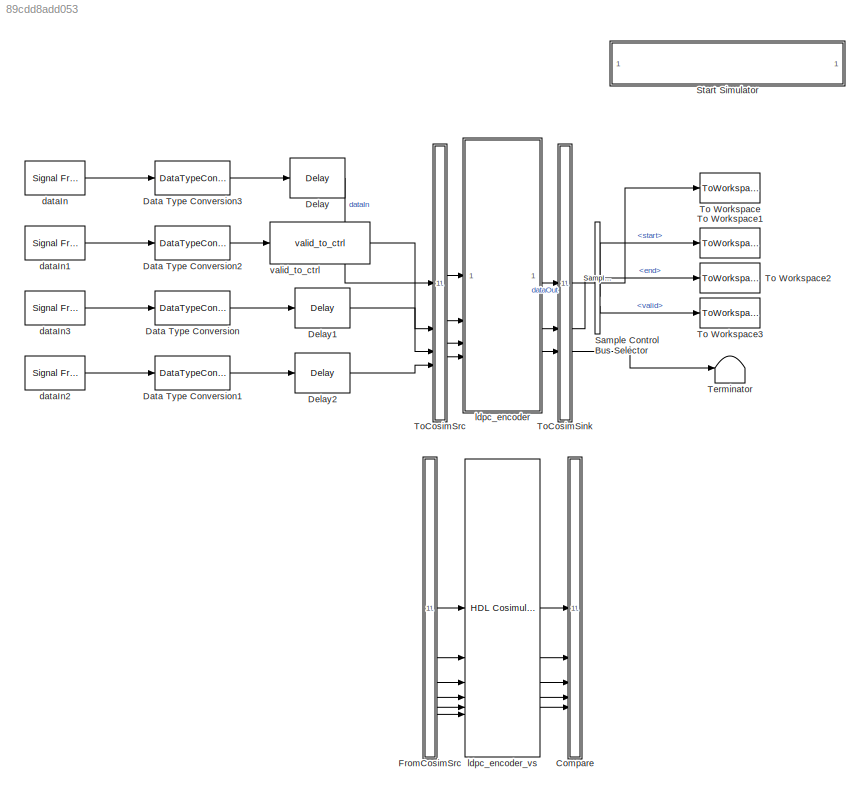
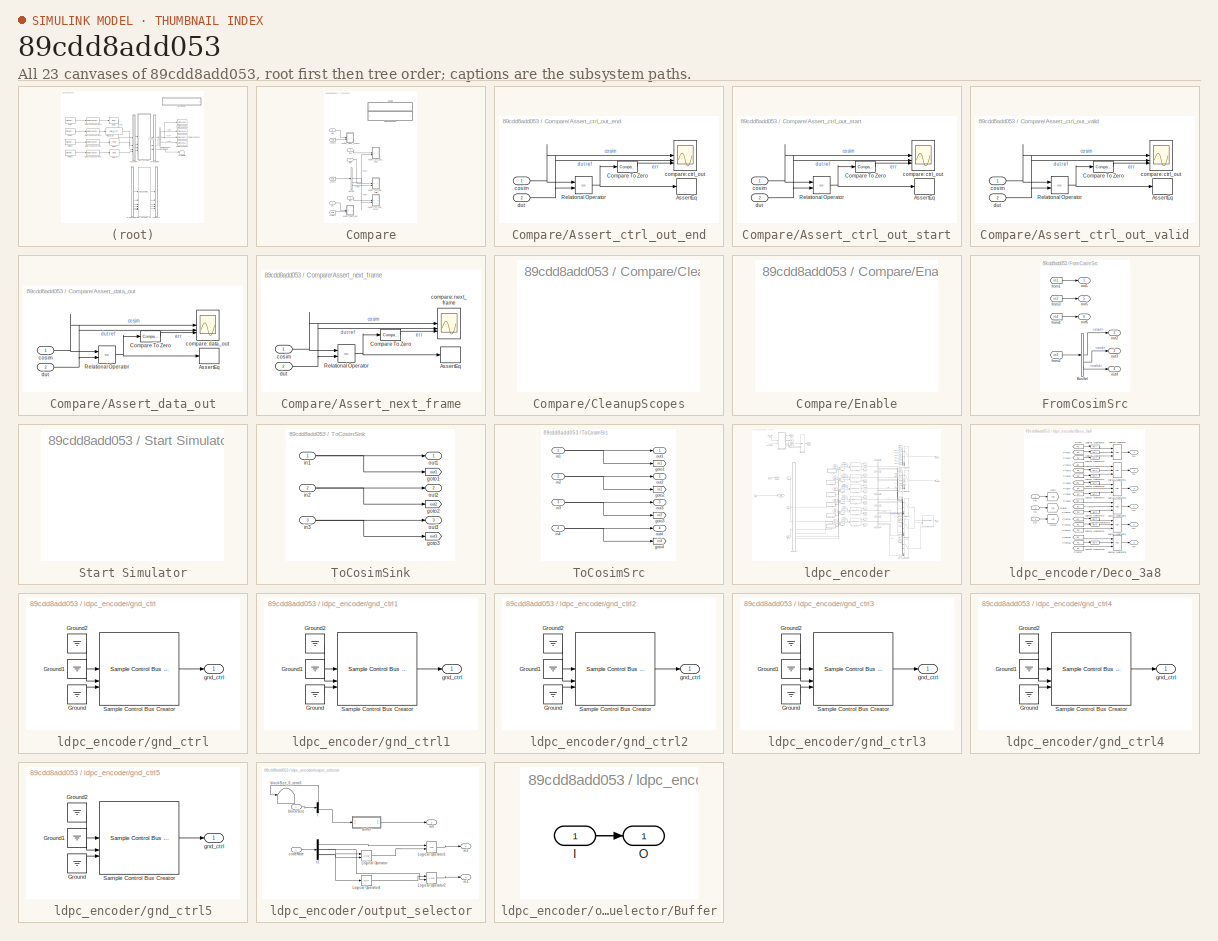
[diagram: thumbnail index - all 23 canvases of the model, root first then tree order]
MODEL slx_89cdd8add053
KIND model
CONFIG AbsTol = auto
CONFIG EnableMultiTasking = off
CONFIG FixedStep = auto
CONFIG MaxStep = auto
CONFIG MinStep = auto
CONFIG RelTol = 1e-3
CONFIG SampleTimeConstraint = Unconstrained
CONFIG SolverName = VariableStepAuto
CONFIG StartTime = 0.0
CONFIG StopTime = 10.0
BLOCK [SubSystem] Compare
BLOCK [SubSystem] Compare/Assert_ctrl_out_end
  LibrarySourceBlock = hdlmdlgenlib/AssertEq
BLOCK [Assertion] Compare/Assert_ctrl_out_end/AssertEq
BLOCK [Reference] Compare/Assert_ctrl_out_end/Compare To Zero  REF=simulink/Logic and Bit
Operations/Compare
To Zero
  SourceBlock = simulink/Logic and Bit\nOperations/Compare\nTo Zero
  SourceType = Compare To Zero
BLOCK [RelationalOperator] Compare/Assert_ctrl_out_end/Relational Operator
  InputSameDT = off
  Operator = ==
  OutDataTypeStr = boolean
BLOCK [Scope] Compare/Assert_ctrl_out_end/compare: ctrl_out
  Floating = off
  NumInputPorts = 3
  ScopeSpecificationString = Simulink.scopes.TimeScopeBlockCfg('CurrentConfiguration', extmgr.ConfigurationSet(extmgr.Configuration('Core','General UI',true,'MessageLogAutoOpenMode','for warn/fail messages','ShowCloseAll',true,'ShowBringAllForward',true),extmgr.Configuration('Core','Source UI',true,'PlaybackToolbar',true),extmgr.Configuration('Sources','WiredSimulink',true,'PointsPerSignal',50000,'DataLoggingDecimation','1','...<+3577ch>
BLOCK [Inport] Compare/Assert_ctrl_out_end/cosim
BLOCK [Inport] Compare/Assert_ctrl_out_end/dut
  Port = 2
BLOCK [SubSystem] Compare/Assert_ctrl_out_start
  LibrarySourceBlock = hdlmdlgenlib/AssertEq
BLOCK [Assertion] Compare/Assert_ctrl_out_start/AssertEq
BLOCK [Reference] Compare/Assert_ctrl_out_start/Compare To Zero  REF=simulink/Logic and Bit
Operations/Compare
To Zero
  SourceBlock = simulink/Logic and Bit\nOperations/Compare\nTo Zero
  SourceType = Compare To Zero
BLOCK [RelationalOperator] Compare/Assert_ctrl_out_start/Relational Operator
  InputSameDT = off
  Operator = ==
  OutDataTypeStr = boolean
BLOCK [Scope] Compare/Assert_ctrl_out_start/compare: ctrl_out
  Floating = off
  NumInputPorts = 3
  ScopeSpecificationString = Simulink.scopes.TimeScopeBlockCfg('CurrentConfiguration', extmgr.ConfigurationSet(extmgr.Configuration('Core','General UI',true,'MessageLogAutoOpenMode','for warn/fail messages','ShowCloseAll',true,'ShowBringAllForward',true),extmgr.Configuration('Core','Source UI',true,'PlaybackToolbar',true),extmgr.Configuration('Sources','WiredSimulink',true,'PointsPerSignal',50000,'DataLoggingDecimation','1','...<+3579ch>
BLOCK [Inport] Compare/Assert_ctrl_out_start/cosim
BLOCK [Inport] Compare/Assert_ctrl_out_start/dut
  Port = 2
BLOCK [SubSystem] Compare/Assert_ctrl_out_valid
  LibrarySourceBlock = hdlmdlgenlib/AssertEq
BLOCK [Assertion] Compare/Assert_ctrl_out_valid/AssertEq
BLOCK [Reference] Compare/Assert_ctrl_out_valid/Compare To Zero  REF=simulink/Logic and Bit
Operations/Compare
To Zero
  SourceBlock = simulink/Logic and Bit\nOperations/Compare\nTo Zero
  SourceType = Compare To Zero
BLOCK [RelationalOperator] Compare/Assert_ctrl_out_valid/Relational Operator
  InputSameDT = off
  Operator = ==
  OutDataTypeStr = boolean
BLOCK [Scope] Compare/Assert_ctrl_out_valid/compare: ctrl_out
  Floating = off
  NumInputPorts = 3
  ScopeSpecificationString = Simulink.scopes.TimeScopeBlockCfg('CurrentConfiguration', extmgr.ConfigurationSet(extmgr.Configuration('Core','General UI',true,'MessageLogAutoOpenMode','for warn/fail messages','ShowCloseAll',true,'ShowBringAllForward',true),extmgr.Configuration('Core','Source UI',true,'PlaybackToolbar',true),extmgr.Configuration('Sources','WiredSimulink',true,'PointsPerSignal',50000,'DataLoggingDecimation','1','...<+3578ch>  <repeated x3 — deduplicated; at blocks: compare: ctrl_out, compare: data_out, compare: next_frame>
BLOCK [Inport] Compare/Assert_ctrl_out_valid/cosim
BLOCK [Inport] Compare/Assert_ctrl_out_valid/dut
  Port = 2
BLOCK [SubSystem] Compare/Assert_data_out
  LibrarySourceBlock = hdlmdlgenlib/AssertEq
BLOCK [Assertion] Compare/Assert_data_out/AssertEq
BLOCK [Reference] Compare/Assert_data_out/Compare To Zero  REF=simulink/Logic and Bit
Operations/Compare
To Zero
  SourceBlock = simulink/Logic and Bit\nOperations/Compare\nTo Zero
  SourceType = Compare To Zero
BLOCK [RelationalOperator] Compare/Assert_data_out/Relational Operator
  InputSameDT = off
  Operator = ==
  OutDataTypeStr = boolean
BLOCK [Scope] Compare/Assert_data_out/compare: data_out
  Floating = off
  NumInputPorts = 3
BLOCK [Inport] Compare/Assert_data_out/cosim
BLOCK [Inport] Compare/Assert_data_out/dut
  Port = 2
BLOCK [SubSystem] Compare/Assert_next_frame
  LibrarySourceBlock = hdlmdlgenlib/AssertEq
BLOCK [Assertion] Compare/Assert_next_frame/AssertEq
BLOCK [Reference] Compare/Assert_next_frame/Compare To Zero  REF=simulink/Logic and Bit
Operations/Compare
To Zero
  SourceBlock = simulink/Logic and Bit\nOperations/Compare\nTo Zero
  SourceType = Compare To Zero
BLOCK [RelationalOperator] Compare/Assert_next_frame/Relational Operator
  InputSameDT = off
  Operator = ==
  OutDataTypeStr = boolean
BLOCK [Scope] Compare/Assert_next_frame/compare: next_frame
  Floating = off
  NumInputPorts = 3
BLOCK [Inport] Compare/Assert_next_frame/cosim
BLOCK [Inport] Compare/Assert_next_frame/dut
  Port = 2
BLOCK [BusSelector] Compare/BusSel
  OutputSignals = start,end,valid
BLOCK [SubSystem] Compare/CleanupScopes
  OpenFcn = blkName = gcb; %self block\nidx = regexp(blkName, '/CleanupScopes$', 'once');\nblkParent = blkName(1:idx-1);\nblks=find_system(blkParent, 'LookUnderMasks', 'all','blocktype', 'Scope');\nfor itr = 1:length(blks)\n	 hScopeCfg = get_param(blks{itr},'ScopeConfiguration');\n	 hScopeCfg.Visible = ~ hScopeCfg.Visible;\nend\ndrawnow;
BLOCK [SubSystem] Compare/Enable
  OpenFcn = blkName = gcb;\nidx = regexp(blkName, '/Enable$', 'once');\nblkParent = blkName(1:idx-1);\nblks=find_system(blkParent, 'LookUnderMasks', 'all','blocktype', 'Assertion');\ne = get_param(blks{1}, 'Enabled');\nif strcmp(e, 'on'), f= 'off';, else, f = 'on';, end\nfor ii=1:length(blks), set_param(blks{ii}, 'Enabled', f);, end\nset_param(gcb, 'MaskDisplay',['fprintf(message(''hdlcoder:cosim:vnl_dblclick_assert...<+47ch>
BLOCK [From] Compare/from1
  GotoTag = out1
  TagVisibility = global
BLOCK [From] Compare/from2
  GotoTag = out2
  TagVisibility = global
BLOCK [From] Compare/from3
  GotoTag = out3
  TagVisibility = global
BLOCK [Inport] Compare/in1
BLOCK [Inport] Compare/in2
  Port = 2
BLOCK [Inport] Compare/in3
  Port = 3
BLOCK [Inport] Compare/in4
  Port = 4
BLOCK [Inport] Compare/in5
  Port = 5
BLOCK [DataTypeConversion] Data Type Conversion
  OutDataTypeStr = boolean
  RndMeth = Floor
  SaturateOnIntegerOverflow = off
BLOCK [DataTypeConversion] Data Type Conversion1
  OutDataTypeStr = boolean
  RndMeth = Floor
  SaturateOnIntegerOverflow = off
BLOCK [DataTypeConversion] Data Type Conversion2
  OutDataTypeStr = boolean
  RndMeth = Floor
  SaturateOnIntegerOverflow = off
BLOCK [DataTypeConversion] Data Type Conversion3
  OutDataTypeStr = boolean
  RndMeth = Floor
  SaturateOnIntegerOverflow = off
BLOCK [Delay] Delay
  DelayLength = 1
  InitialCondition = 0
  InputPortMap = u0
  UseCircularBuffer = on
  UserDataPersistent = on
BLOCK [Delay] Delay1
  DelayLength = 1
  InitialCondition = 0
  InputPortMap = u0
  UseCircularBuffer = on
  UserDataPersistent = on
BLOCK [Delay] Delay2
  DelayLength = 1
  InitialCondition = 0
  InputPortMap = u0
  UseCircularBuffer = on
  UserDataPersistent = on
BLOCK [SubSystem] FromCosimSrc
BLOCK [BusSelector] FromCosimSrc/BusSel
  OutputSignals = start,end,valid
BLOCK [From] FromCosimSrc/from1
  GotoTag = in1
  TagVisibility = global
BLOCK [From] FromCosimSrc/from2
  GotoTag = in2
  TagVisibility = global
BLOCK [From] FromCosimSrc/from3
  GotoTag = in3
  TagVisibility = global
BLOCK [From] FromCosimSrc/from4
  GotoTag = in4
  TagVisibility = global
BLOCK [Outport] FromCosimSrc/out1
BLOCK [Outport] FromCosimSrc/out2
  Port = 2
BLOCK [Outport] FromCosimSrc/out3
  Port = 3
BLOCK [Outport] FromCosimSrc/out4
  Port = 4
BLOCK [Outport] FromCosimSrc/out5
  Port = 5
BLOCK [Outport] FromCosimSrc/out6
  Port = 6
BLOCK [Reference] Sample Control Bus Selector  REF=whdlutilities/Sample Control
Bus Selector
  SourceBlock = whdlutilities/Sample Control\nBus Selector
BLOCK [SubSystem] Start Simulator
  OpenFcn = cosimDirName = pwd;\ncd 'hdl_prj/hdlsrc/HDLLDPCEncoder';\n[s,r] = system('vivado -mode batch -source gm_HDLLDPCEncoder_vs.tcl','-echo');\ncd (cosimDirName);\nclear cosimDirName;\nif s\n   error('Failed to create Vivado HDL design DLL using script gm_HDLLDPCEncoder_vs.tcl.');\nend
BLOCK [Terminator] Terminator
BLOCK [ToWorkspace] To Workspace
  MaxDataPoints = inf
  SampleTime = 1/fs
  Save2DSignal = 2-D array (concatenate along first dimension)
  VariableName = dataOut
BLOCK [ToWorkspace] To Workspace1
  MaxDataPoints = inf
  SampleTime = 1/fs
  Save2DSignal = 2-D array (concatenate along first dimension)
  VariableName = startOut
BLOCK [ToWorkspace] To Workspace2
  MaxDataPoints = inf
  SampleTime = 1/fs
  Save2DSignal = 2-D array (concatenate along first dimension)
  VariableName = endOut
BLOCK [ToWorkspace] To Workspace3
  MaxDataPoints = inf
  SampleTime = 1/fs
  Save2DSignal = 2-D array (concatenate along first dimension)
  VariableName = validOut
BLOCK [SubSystem] ToCosimSink
BLOCK [Goto] ToCosimSink/goto1
  GotoTag = out1
  TagVisibility = global
BLOCK [Goto] ToCosimSink/goto2
  GotoTag = out2
  TagVisibility = global
BLOCK [Goto] ToCosimSink/goto3
  GotoTag = out3
  TagVisibility = global
BLOCK [Inport] ToCosimSink/in1
BLOCK [Inport] ToCosimSink/in2
  Port = 2
BLOCK [Inport] ToCosimSink/in3
  Port = 3
BLOCK [Outport] ToCosimSink/out1
BLOCK [Outport] ToCosimSink/out2
  Port = 2
BLOCK [Outport] ToCosimSink/out3
  Port = 3
BLOCK [SubSystem] ToCosimSrc
BLOCK [Goto] ToCosimSrc/goto1
  GotoTag = in1
  TagVisibility = global
BLOCK [Goto] ToCosimSrc/goto2
  GotoTag = in2
  TagVisibility = global
BLOCK [Goto] ToCosimSrc/goto3
  GotoTag = in3
  TagVisibility = global
BLOCK [Goto] ToCosimSrc/goto4
  GotoTag = in4
  TagVisibility = global
BLOCK [Inport] ToCosimSrc/in1
BLOCK [Inport] ToCosimSrc/in2
  Port = 2
BLOCK [Inport] ToCosimSrc/in3
  Port = 3
BLOCK [Inport] ToCosimSrc/in4
  Port = 4
BLOCK [Outport] ToCosimSrc/out1
BLOCK [Outport] ToCosimSrc/out2
  Port = 2
BLOCK [Outport] ToCosimSrc/out3
  Port = 3
BLOCK [Outport] ToCosimSrc/out4
  Port = 4
BLOCK [Reference] dataIn  REF=dspsrcs4/Signal From
Workspace
  SourceBlock = dspsrcs4/Signal From\nWorkspace
  SourceType = Signal From Workspace
BLOCK [Reference] dataIn1  REF=dspsrcs4/Signal From
Workspace
  SourceBlock = dspsrcs4/Signal From\nWorkspace
  SourceType = Signal From Workspace
BLOCK [Reference] dataIn2  REF=dspsrcs4/Signal From
Workspace
  SourceBlock = dspsrcs4/Signal From\nWorkspace
  SourceType = Signal From Workspace
BLOCK [Reference] dataIn3  REF=dspsrcs4/Signal From
Workspace
  SourceBlock = dspsrcs4/Signal From\nWorkspace
  SourceType = Signal From Workspace
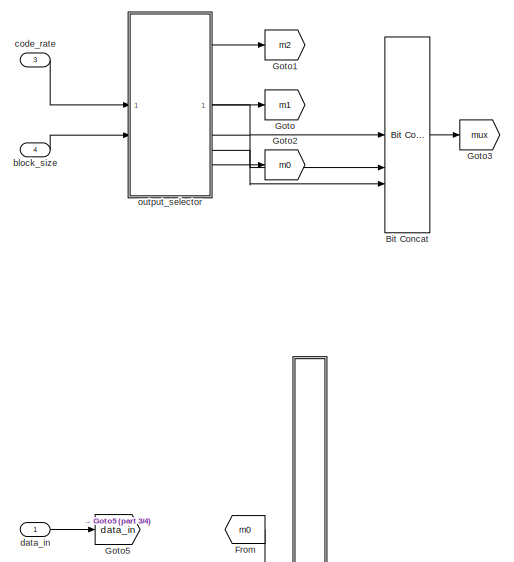
[diagram: ldpc_encoder - part 1/4, top left region]
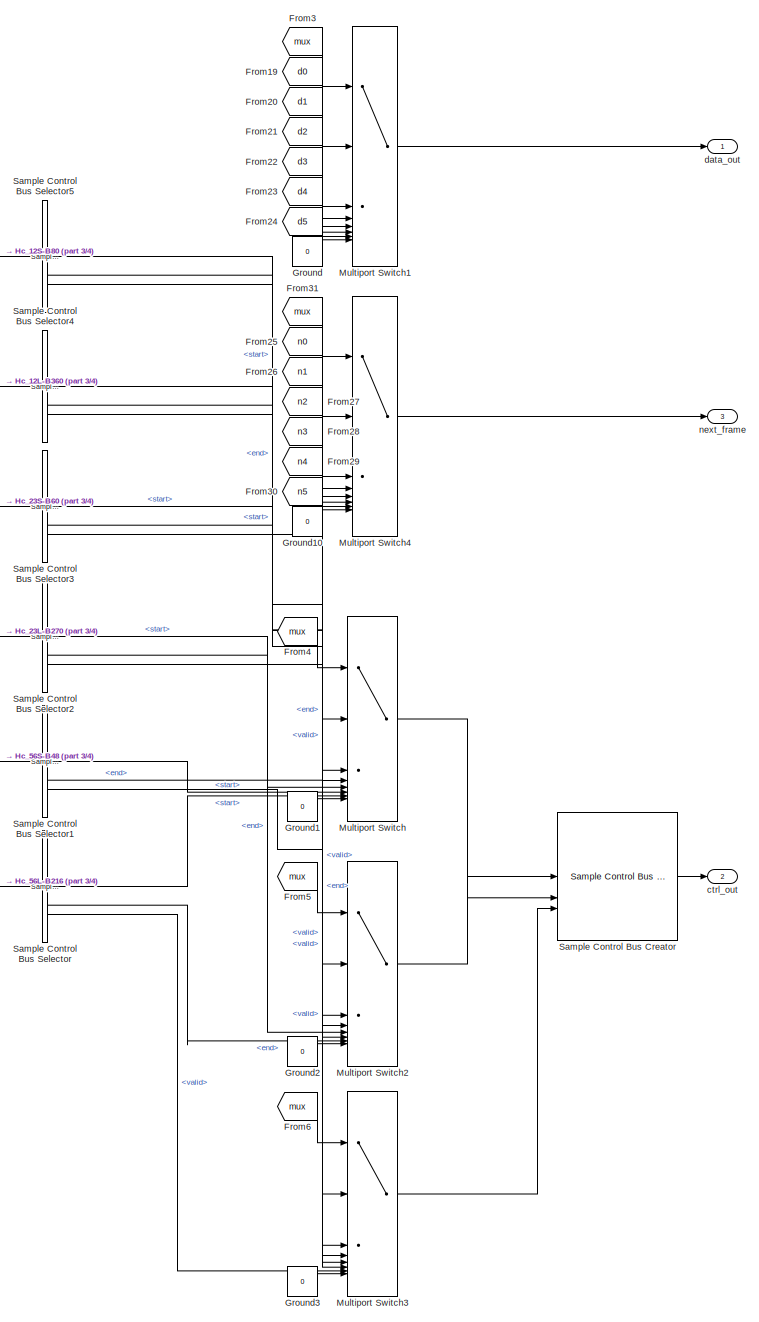
[diagram: ldpc_encoder - part 2/4, right side, full height]
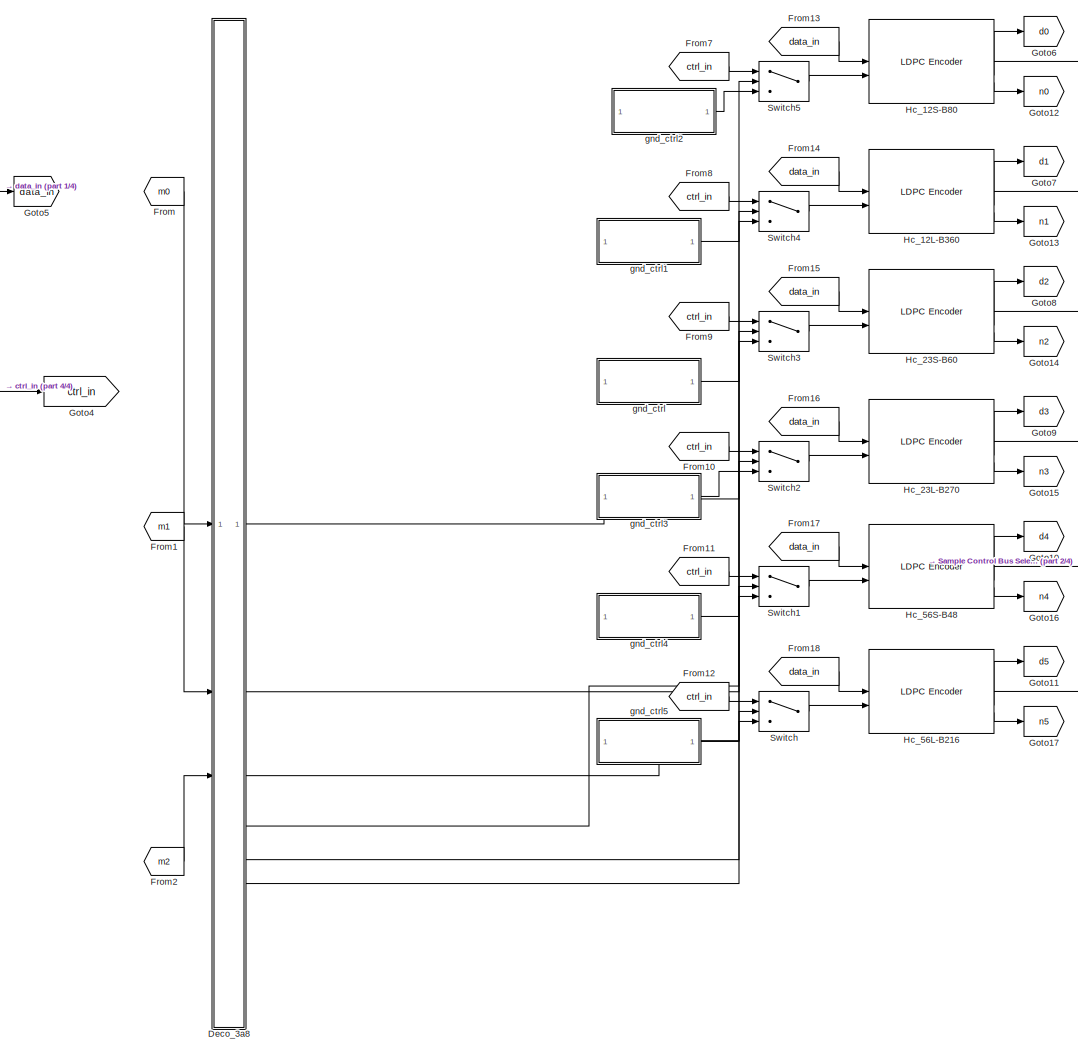
[diagram: ldpc_encoder - part 3/4, central region]
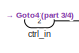
[diagram: ldpc_encoder - part 4/4, middle left region]
BLOCK [SubSystem] ldpc_encoder
BLOCK [Reference] ldpc_encoder/Bit Concat  REF=hdlsllib/Logic and Bit
Operations/Bit Concat
  SourceBlock = hdlsllib/Logic and Bit\nOperations/Bit Concat
  SourceType = Bit Concat
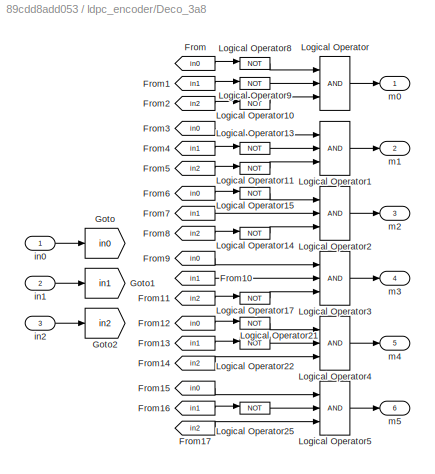
BLOCK [SubSystem] ldpc_encoder/Deco_3a8
BLOCK [From] ldpc_encoder/Deco_3a8/From
  GotoTag = in0
BLOCK [From] ldpc_encoder/Deco_3a8/From1
  GotoTag = in1
BLOCK [From] ldpc_encoder/Deco_3a8/From10
  GotoTag = in1
BLOCK [From] ldpc_encoder/Deco_3a8/From11
  GotoTag = in2
BLOCK [From] ldpc_encoder/Deco_3a8/From12
  GotoTag = in0
BLOCK [From] ldpc_encoder/Deco_3a8/From13
  GotoTag = in1
BLOCK [From] ldpc_encoder/Deco_3a8/From14
  GotoTag = in2
BLOCK [From] ldpc_encoder/Deco_3a8/From15
  GotoTag = in0
BLOCK [From] ldpc_encoder/Deco_3a8/From16
  GotoTag = in1
BLOCK [From] ldpc_encoder/Deco_3a8/From17
  GotoTag = in2
BLOCK [From] ldpc_encoder/Deco_3a8/From2
  GotoTag = in2
BLOCK [From] ldpc_encoder/Deco_3a8/From3
  GotoTag = in0
BLOCK [From] ldpc_encoder/Deco_3a8/From4
  GotoTag = in1
BLOCK [From] ldpc_encoder/Deco_3a8/From5
  GotoTag = in2
BLOCK [From] ldpc_encoder/Deco_3a8/From6
  GotoTag = in0
BLOCK [From] ldpc_encoder/Deco_3a8/From7
  GotoTag = in1
BLOCK [From] ldpc_encoder/Deco_3a8/From8
  GotoTag = in2
BLOCK [From] ldpc_encoder/Deco_3a8/From9
  GotoTag = in0
BLOCK [Goto] ldpc_encoder/Deco_3a8/Goto
  GotoTag = in0
BLOCK [Goto] ldpc_encoder/Deco_3a8/Goto1
  GotoTag = in1
BLOCK [Goto] ldpc_encoder/Deco_3a8/Goto2
  GotoTag = in2
BLOCK [Logic] ldpc_encoder/Deco_3a8/Logical Operator
  AllPortsSameDT = off
  IconShape = distinctive
  Inputs = 3
  OutDataTypeStr = boolean
BLOCK [Logic] ldpc_encoder/Deco_3a8/Logical Operator1
  AllPortsSameDT = off
  IconShape = distinctive
  Inputs = 3
  OutDataTypeStr = boolean
BLOCK [Logic] ldpc_encoder/Deco_3a8/Logical Operator10
  AllPortsSameDT = off
  IconShape = distinctive
  Operator = NOT
  OutDataTypeStr = boolean
BLOCK [Logic] ldpc_encoder/Deco_3a8/Logical Operator11
  AllPortsSameDT = off
  IconShape = distinctive
  Operator = NOT
  OutDataTypeStr = boolean
BLOCK [Logic] ldpc_encoder/Deco_3a8/Logical Operator13
  AllPortsSameDT = off
  IconShape = distinctive
  Operator = NOT
  OutDataTypeStr = boolean
BLOCK [Logic] ldpc_encoder/Deco_3a8/Logical Operator14
  AllPortsSameDT = off
  IconShape = distinctive
  Operator = NOT
  OutDataTypeStr = boolean
BLOCK [Logic] ldpc_encoder/Deco_3a8/Logical Operator15
  AllPortsSameDT = off
  IconShape = distinctive
  Operator = NOT
  OutDataTypeStr = boolean
BLOCK [Logic] ldpc_encoder/Deco_3a8/Logical Operator17
  AllPortsSameDT = off
  IconShape = distinctive
  Operator = NOT
  OutDataTypeStr = boolean
BLOCK [Logic] ldpc_encoder/Deco_3a8/Logical Operator2
  AllPortsSameDT = off
  IconShape = distinctive
  Inputs = 3
  OutDataTypeStr = boolean
BLOCK [Logic] ldpc_encoder/Deco_3a8/Logical Operator21
  AllPortsSameDT = off
  IconShape = distinctive
  Operator = NOT
  OutDataTypeStr = boolean
BLOCK [Logic] ldpc_encoder/Deco_3a8/Logical Operator22
  AllPortsSameDT = off
  IconShape = distinctive
  Operator = NOT
  OutDataTypeStr = boolean
BLOCK [Logic] ldpc_encoder/Deco_3a8/Logical Operator25
  AllPortsSameDT = off
  IconShape = distinctive
  Operator = NOT
  OutDataTypeStr = boolean
BLOCK [Logic] ldpc_encoder/Deco_3a8/Logical Operator3
  AllPortsSameDT = off
  IconShape = distinctive
  Inputs = 3
  OutDataTypeStr = boolean
BLOCK [Logic] ldpc_encoder/Deco_3a8/Logical Operator4
  AllPortsSameDT = off
  IconShape = distinctive
  Inputs = 3
  OutDataTypeStr = boolean
BLOCK [Logic] ldpc_encoder/Deco_3a8/Logical Operator5
  AllPortsSameDT = off
  IconShape = distinctive
  Inputs = 3
  OutDataTypeStr = boolean
BLOCK [Logic] ldpc_encoder/Deco_3a8/Logical Operator8
  AllPortsSameDT = off
  IconShape = distinctive
  Operator = NOT
  OutDataTypeStr = boolean
BLOCK [Logic] ldpc_encoder/Deco_3a8/Logical Operator9
  AllPortsSameDT = off
  IconShape = distinctive
  Operator = NOT
  OutDataTypeStr = boolean
BLOCK [Inport] ldpc_encoder/Deco_3a8/in0
  OutDataTypeStr = boolean
  SampleTime = 1
BLOCK [Inport] ldpc_encoder/Deco_3a8/in1
  OutDataTypeStr = boolean
  Port = 2
  SampleTime = 1
BLOCK [Inport] ldpc_encoder/Deco_3a8/in2
  OutDataTypeStr = boolean
  Port = 3
  SampleTime = 1
BLOCK [Outport] ldpc_encoder/Deco_3a8/m0
  SampleTime = 1
BLOCK [Outport] ldpc_encoder/Deco_3a8/m1
  Port = 2
  SampleTime = 1
BLOCK [Outport] ldpc_encoder/Deco_3a8/m2
  Port = 3
  SampleTime = 1
BLOCK [Outport] ldpc_encoder/Deco_3a8/m3
  Port = 4
  SampleTime = 1
BLOCK [Outport] ldpc_encoder/Deco_3a8/m4
  Port = 5
  SampleTime = 1
BLOCK [Outport] ldpc_encoder/Deco_3a8/m5
  Port = 6
  SampleTime = 1
BLOCK [From] ldpc_encoder/From
  GotoTag = m0
BLOCK [From] ldpc_encoder/From1
  GotoTag = m1
BLOCK [From] ldpc_encoder/From10
  GotoTag = ctrl_in
BLOCK [From] ldpc_encoder/From11
  GotoTag = ctrl_in
BLOCK [From] ldpc_encoder/From12
  GotoTag = ctrl_in
BLOCK [From] ldpc_encoder/From13
  GotoTag = data_in
BLOCK [From] ldpc_encoder/From14
  GotoTag = data_in
BLOCK [From] ldpc_encoder/From15
  GotoTag = data_in
BLOCK [From] ldpc_encoder/From16
  GotoTag = data_in
BLOCK [From] ldpc_encoder/From17
  GotoTag = data_in
BLOCK [From] ldpc_encoder/From18
  GotoTag = data_in
BLOCK [From] ldpc_encoder/From19
  GotoTag = d0
BLOCK [From] ldpc_encoder/From2
  GotoTag = m2
BLOCK [From] ldpc_encoder/From20
  GotoTag = d1
BLOCK [From] ldpc_encoder/From21
  GotoTag = d2
BLOCK [From] ldpc_encoder/From22
  GotoTag = d3
BLOCK [From] ldpc_encoder/From23
  GotoTag = d4
BLOCK [From] ldpc_encoder/From24
  GotoTag = d5
BLOCK [From] ldpc_encoder/From25
  GotoTag = n0
BLOCK [From] ldpc_encoder/From26
  GotoTag = n1
BLOCK [From] ldpc_encoder/From27
  GotoTag = n2
BLOCK [From] ldpc_encoder/From28
  GotoTag = n3
BLOCK [From] ldpc_encoder/From29
  GotoTag = n4
BLOCK [From] ldpc_encoder/From3
  GotoTag = mux
BLOCK [From] ldpc_encoder/From30
  GotoTag = n5
BLOCK [From] ldpc_encoder/From31
  GotoTag = mux
BLOCK [From] ldpc_encoder/From4
  GotoTag = mux
BLOCK [From] ldpc_encoder/From5
  GotoTag = mux
BLOCK [From] ldpc_encoder/From6
  GotoTag = mux
BLOCK [From] ldpc_encoder/From7
  GotoTag = ctrl_in
BLOCK [From] ldpc_encoder/From8
  GotoTag = ctrl_in
BLOCK [From] ldpc_encoder/From9
  GotoTag = ctrl_in
BLOCK [Goto] ldpc_encoder/Goto
  GotoTag = m1
BLOCK [Goto] ldpc_encoder/Goto1
  GotoTag = m2
BLOCK [Goto] ldpc_encoder/Goto10
  GotoTag = d4
BLOCK [Goto] ldpc_encoder/Goto11
  GotoTag = d5
BLOCK [Goto] ldpc_encoder/Goto12
  GotoTag = n0
BLOCK [Goto] ldpc_encoder/Goto13
  GotoTag = n1
BLOCK [Goto] ldpc_encoder/Goto14
  GotoTag = n2
BLOCK [Goto] ldpc_encoder/Goto15
  GotoTag = n3
BLOCK [Goto] ldpc_encoder/Goto16
  GotoTag = n4
BLOCK [Goto] ldpc_encoder/Goto17
  GotoTag = n5
BLOCK [Goto] ldpc_encoder/Goto2
  GotoTag = m0
BLOCK [Goto] ldpc_encoder/Goto3
  GotoTag = mux
BLOCK [Goto] ldpc_encoder/Goto4
  GotoTag = ctrl_in
BLOCK [Goto] ldpc_encoder/Goto5
  GotoTag = data_in
BLOCK [Goto] ldpc_encoder/Goto6
  GotoTag = d0
BLOCK [Goto] ldpc_encoder/Goto7
  GotoTag = d1
BLOCK [Goto] ldpc_encoder/Goto8
  GotoTag = d2
BLOCK [Goto] ldpc_encoder/Goto9
  GotoTag = d3
BLOCK [Constant] ldpc_encoder/Ground
  OutDataTypeStr = boolean
  SampleTime = -1
  Value = 0
BLOCK [Constant] ldpc_encoder/Ground1
  OutDataTypeStr = boolean
  SampleTime = -1
  Value = 0
BLOCK [Constant] ldpc_encoder/Ground10
  OutDataTypeStr = boolean
  SampleTime = -1
  Value = 0
BLOCK [Constant] ldpc_encoder/Ground2
  OutDataTypeStr = boolean
  SampleTime = -1
  Value = 0
BLOCK [Constant] ldpc_encoder/Ground3
  OutDataTypeStr = boolean
  SampleTime = -1
  Value = 0
BLOCK [Reference] ldpc_encoder/Hc_12L-B360  REF=whdledac/LDPC Encoder
  SourceBlock = whdledac/LDPC Encoder
  SourceType = LDPC Encoder
BLOCK [Reference] ldpc_encoder/Hc_12S-B80  REF=whdledac/LDPC Encoder
  SourceBlock = whdledac/LDPC Encoder
  SourceType = LDPC Encoder
BLOCK [Reference] ldpc_encoder/Hc_23L-B270  REF=whdledac/LDPC Encoder
  SourceBlock = whdledac/LDPC Encoder
  SourceType = LDPC Encoder
BLOCK [Reference] ldpc_encoder/Hc_23S-B60  REF=whdledac/LDPC Encoder
  SourceBlock = whdledac/LDPC Encoder
  SourceType = LDPC Encoder
BLOCK [Reference] ldpc_encoder/Hc_56L-B216  REF=whdledac/LDPC Encoder
  SourceBlock = whdledac/LDPC Encoder
  SourceType = LDPC Encoder
BLOCK [Reference] ldpc_encoder/Hc_56S-B48  REF=whdledac/LDPC Encoder
  SourceBlock = whdledac/LDPC Encoder
  SourceType = LDPC Encoder
BLOCK [MultiPortSwitch] ldpc_encoder/Multiport Switch
  DataPortForDefault = Additional data port
  DataPortOrder = Zero-based contiguous
  DiagnosticForDefault = None
  InputSameDT = off
  Inputs = 6
  SaturateOnIntegerOverflow = off
  zeroidx = on
BLOCK [MultiPortSwitch] ldpc_encoder/Multiport Switch1
  DataPortForDefault = Additional data port
  DataPortOrder = Zero-based contiguous
  DiagnosticForDefault = None
  InputSameDT = off
  Inputs = 6
  SaturateOnIntegerOverflow = off
  zeroidx = on
BLOCK [MultiPortSwitch] ldpc_encoder/Multiport Switch2
  DataPortForDefault = Additional data port
  DataPortOrder = Zero-based contiguous
  DiagnosticForDefault = None
  InputSameDT = off
  Inputs = 6
  SaturateOnIntegerOverflow = off
  zeroidx = on
BLOCK [MultiPortSwitch] ldpc_encoder/Multiport Switch3
  DataPortForDefault = Additional data port
  DataPortOrder = Zero-based contiguous
  DiagnosticForDefault = None
  InputSameDT = off
  Inputs = 6
  SaturateOnIntegerOverflow = off
  zeroidx = on
BLOCK [MultiPortSwitch] ldpc_encoder/Multiport Switch4
  DataPortForDefault = Additional data port
  DataPortOrder = Zero-based contiguous
  DiagnosticForDefault = None
  InputSameDT = off
  Inputs = 6
  SaturateOnIntegerOverflow = off
  zeroidx = on
BLOCK [Reference] ldpc_encoder/Sample Control Bus Creator  REF=whdlutilities/Sample Control
Bus Creator
  SourceBlock = whdlutilities/Sample Control\nBus Creator
  SourceType = Sample Control Bus Creator
BLOCK [Reference] ldpc_encoder/Sample Control Bus Selector  REF=whdlutilities/Sample Control
Bus Selector
  SourceBlock = whdlutilities/Sample Control\nBus Selector
BLOCK [Reference] ldpc_encoder/Sample Control Bus Selector1  REF=whdlutilities/Sample Control
Bus Selector
  SourceBlock = whdlutilities/Sample Control\nBus Selector
BLOCK [Reference] ldpc_encoder/Sample Control Bus Selector2  REF=whdlutilities/Sample Control
Bus Selector
  SourceBlock = whdlutilities/Sample Control\nBus Selector
BLOCK [Reference] ldpc_encoder/Sample Control Bus Selector3  REF=whdlutilities/Sample Control
Bus Selector
  SourceBlock = whdlutilities/Sample Control\nBus Selector
BLOCK [Reference] ldpc_encoder/Sample Control Bus Selector4  REF=whdlutilities/Sample Control
Bus Selector
  SourceBlock = whdlutilities/Sample Control\nBus Selector
BLOCK [Reference] ldpc_encoder/Sample Control Bus Selector5  REF=whdlutilities/Sample Control
Bus Selector
  SourceBlock = whdlutilities/Sample Control\nBus Selector
BLOCK [Switch] ldpc_encoder/Switch
  Criteria = u2 ~= 0
  InputSameDT = off
  OutDataTypeStr = Inherit: Same as first input
  SaturateOnIntegerOverflow = off
BLOCK [Switch] ldpc_encoder/Switch1
  Criteria = u2 ~= 0
  InputSameDT = off
  OutDataTypeStr = Inherit: Same as first input
  SaturateOnIntegerOverflow = off
BLOCK [Switch] ldpc_encoder/Switch2
  Criteria = u2 ~= 0
  InputSameDT = off
  OutDataTypeStr = Inherit: Same as first input
  SaturateOnIntegerOverflow = off
BLOCK [Switch] ldpc_encoder/Switch3
  Criteria = u2 ~= 0
  InputSameDT = off
  OutDataTypeStr = Inherit: Same as first input
  SaturateOnIntegerOverflow = off
BLOCK [Switch] ldpc_encoder/Switch4
  Criteria = u2 ~= 0
  InputSameDT = off
  OutDataTypeStr = Inherit: Same as first input
  SaturateOnIntegerOverflow = off
BLOCK [Switch] ldpc_encoder/Switch5
  Criteria = u2 ~= 0
  InputSameDT = off
  OutDataTypeStr = Inherit: Same as first input
  SaturateOnIntegerOverflow = off
BLOCK [Inport] ldpc_encoder/block_size
  OutDataTypeStr = boolean
  Port = 4
  PortDimensions = [1 2]
  SampleTime = 1
BLOCK [Inport] ldpc_encoder/code_rate
  OutDataTypeStr = boolean
  Port = 3
  PortDimensions = [1 3]
  SampleTime = 1
BLOCK [Inport] ldpc_encoder/ctrl_in
  Port = 2
BLOCK [Outport] ldpc_encoder/ctrl_out
  Port = 2
BLOCK [Inport] ldpc_encoder/data_in
  OutDataTypeStr = boolean
  PortDimensions = 1
  SampleTime = 1
BLOCK [Outport] ldpc_encoder/data_out
  SampleTime = 1
BLOCK [SubSystem] ldpc_encoder/gnd_ctrl
BLOCK [Ground] ldpc_encoder/gnd_ctrl/Ground
BLOCK [Ground] ldpc_encoder/gnd_ctrl/Ground1
BLOCK [Ground] ldpc_encoder/gnd_ctrl/Ground2
BLOCK [Reference] ldpc_encoder/gnd_ctrl/Sample Control Bus Creator  REF=whdlutilities/Sample Control
Bus Creator
  SourceBlock = whdlutilities/Sample Control\nBus Creator
  SourceType = Sample Control Bus Creator
BLOCK [Outport] ldpc_encoder/gnd_ctrl/gnd_ctrl
  SampleTime = 1
BLOCK [SubSystem] ldpc_encoder/gnd_ctrl1
BLOCK [Ground] ldpc_encoder/gnd_ctrl1/Ground
BLOCK [Ground] ldpc_encoder/gnd_ctrl1/Ground1
BLOCK [Ground] ldpc_encoder/gnd_ctrl1/Ground2
BLOCK [Reference] ldpc_encoder/gnd_ctrl1/Sample Control Bus Creator  REF=whdlutilities/Sample Control
Bus Creator
  SourceBlock = whdlutilities/Sample Control\nBus Creator
  SourceType = Sample Control Bus Creator
BLOCK [Outport] ldpc_encoder/gnd_ctrl1/gnd_ctrl
  SampleTime = 1
BLOCK [SubSystem] ldpc_encoder/gnd_ctrl2
BLOCK [Ground] ldpc_encoder/gnd_ctrl2/Ground
BLOCK [Ground] ldpc_encoder/gnd_ctrl2/Ground1
BLOCK [Ground] ldpc_encoder/gnd_ctrl2/Ground2
BLOCK [Reference] ldpc_encoder/gnd_ctrl2/Sample Control Bus Creator  REF=whdlutilities/Sample Control
Bus Creator
  SourceBlock = whdlutilities/Sample Control\nBus Creator
  SourceType = Sample Control Bus Creator
BLOCK [Outport] ldpc_encoder/gnd_ctrl2/gnd_ctrl
  SampleTime = 1
BLOCK [SubSystem] ldpc_encoder/gnd_ctrl3
BLOCK [Ground] ldpc_encoder/gnd_ctrl3/Ground
BLOCK [Ground] ldpc_encoder/gnd_ctrl3/Ground1
BLOCK [Ground] ldpc_encoder/gnd_ctrl3/Ground2
BLOCK [Reference] ldpc_encoder/gnd_ctrl3/Sample Control Bus Creator  REF=whdlutilities/Sample Control
Bus Creator
  SourceBlock = whdlutilities/Sample Control\nBus Creator
  SourceType = Sample Control Bus Creator
BLOCK [Outport] ldpc_encoder/gnd_ctrl3/gnd_ctrl
  SampleTime = 1
BLOCK [SubSystem] ldpc_encoder/gnd_ctrl4
BLOCK [Ground] ldpc_encoder/gnd_ctrl4/Ground
BLOCK [Ground] ldpc_encoder/gnd_ctrl4/Ground1
BLOCK [Ground] ldpc_encoder/gnd_ctrl4/Ground2
BLOCK [Reference] ldpc_encoder/gnd_ctrl4/Sample Control Bus Creator  REF=whdlutilities/Sample Control
Bus Creator
  SourceBlock = whdlutilities/Sample Control\nBus Creator
  SourceType = Sample Control Bus Creator
BLOCK [Outport] ldpc_encoder/gnd_ctrl4/gnd_ctrl
  SampleTime = 1
BLOCK [SubSystem] ldpc_encoder/gnd_ctrl5
BLOCK [Ground] ldpc_encoder/gnd_ctrl5/Ground
BLOCK [Ground] ldpc_encoder/gnd_ctrl5/Ground1
BLOCK [Ground] ldpc_encoder/gnd_ctrl5/Ground2
BLOCK [Reference] ldpc_encoder/gnd_ctrl5/Sample Control Bus Creator  REF=whdlutilities/Sample Control
Bus Creator
  SourceBlock = whdlutilities/Sample Control\nBus Creator
  SourceType = Sample Control Bus Creator
BLOCK [Outport] ldpc_encoder/gnd_ctrl5/gnd_ctrl
  SampleTime = 1
BLOCK [Outport] ldpc_encoder/next_frame
  Port = 3
  SampleTime = 1
BLOCK [SubSystem] ldpc_encoder/output_selector
BLOCK [SubSystem] ldpc_encoder/output_selector/Buffer
BLOCK [Inport] ldpc_encoder/output_selector/Buffer/I
  OutDataTypeStr = boolean
  SampleTime = 1
BLOCK [Outport] ldpc_encoder/output_selector/Buffer/O
  SampleTime = 1
BLOCK [Logic] ldpc_encoder/output_selector/Logical Operator
  AllPortsSameDT = off
  OutDataTypeStr = boolean
  SampleTime = 1
BLOCK [Logic] ldpc_encoder/output_selector/Logical Operator1
  AllPortsSameDT = off
  Operator = OR
  OutDataTypeStr = boolean
  SampleTime = 1
BLOCK [Logic] ldpc_encoder/output_selector/Logical Operator2
  AllPortsSameDT = off
  OutDataTypeStr = boolean
  SampleTime = 1
BLOCK [Logic] ldpc_encoder/output_selector/Logical Operator4
  AllPortsSameDT = off
  Inputs = 1
  Operator = NOT
  OutDataTypeStr = boolean
  SampleTime = 1
BLOCK [Inport] ldpc_encoder/output_selector/blockSize
  OutDataTypeStr = boolean
  Port = 2
  PortDimensions = [1 2]
  SampleTime = 1
BLOCK [Terminator] ldpc_encoder/output_selector/blockSize_0_term0
BLOCK [Inport] ldpc_encoder/output_selector/codeRate
  OutDataTypeStr = boolean
  PortDimensions = [1 3]
  SampleTime = 1
BLOCK [Outport] ldpc_encoder/output_selector/m0
  Port = 3
  SampleTime = 1
  VectorParamsAs1DForOutWhenUnconnected = off
BLOCK [Outport] ldpc_encoder/output_selector/m1
  Port = 2
  SampleTime = 1
  VectorParamsAs1DForOutWhenUnconnected = off
BLOCK [Outport] ldpc_encoder/output_selector/m2
  SampleTime = 1
  VectorParamsAs1DForOutWhenUnconnected = off
BLOCK [Demux] ldpc_encoder/output_selector/t
  Outputs = 2
BLOCK [Demux] ldpc_encoder/output_selector/t1
  Outputs = 3
BLOCK [Reference] ldpc_encoder_vs  REF=vivadosimlib/HDL Cosimulation
  SourceBlock = vivadosimlib/HDL Cosimulation
  SourceType = Simulink and Vivado Simulator Cosimulation
  UserDataPersistent = on
BLOCK [Reference] valid_to_ctrl  REF=HDL_ieee_8021513/valid_to_ctrl
  SourceBlock = HDL_ieee_8021513/valid_to_ctrl
  SourceProductName = HDL IEEE 8021513
  SourceType = SubSystem
LINE Compare/Assert_ctrl_out_end/Compare To Zero:1 -> Compare/Assert_ctrl_out_end/compare: ctrl_out:3
NET Compare/Assert_ctrl_out_end/Relational Operator:1 -> Compare/Assert_ctrl_out_end/AssertEq:1, Compare/Assert_ctrl_out_end/Compare To Zero:1
NET Compare/Assert_ctrl_out_end/cosim:1 -> Compare/Assert_ctrl_out_end/Relational Operator:1, Compare/Assert_ctrl_out_end/compare: ctrl_out:1
NET Compare/Assert_ctrl_out_end/dut:1 -> Compare/Assert_ctrl_out_end/Relational Operator:2, Compare/Assert_ctrl_out_end/compare: ctrl_out:2
LINE Compare/Assert_ctrl_out_start/Compare To Zero:1 -> Compare/Assert_ctrl_out_start/compare: ctrl_out:3
NET Compare/Assert_ctrl_out_start/Relational Operator:1 -> Compare/Assert_ctrl_out_start/AssertEq:1, Compare/Assert_ctrl_out_start/Compare To Zero:1
NET Compare/Assert_ctrl_out_start/cosim:1 -> Compare/Assert_ctrl_out_start/Relational Operator:1, Compare/Assert_ctrl_out_start/compare: ctrl_out:1
NET Compare/Assert_ctrl_out_start/dut:1 -> Compare/Assert_ctrl_out_start/Relational Operator:2, Compare/Assert_ctrl_out_start/compare: ctrl_out:2
LINE Compare/Assert_ctrl_out_valid/Compare To Zero:1 -> Compare/Assert_ctrl_out_valid/compare: ctrl_out:3
NET Compare/Assert_ctrl_out_valid/Relational Operator:1 -> Compare/Assert_ctrl_out_valid/AssertEq:1, Compare/Assert_ctrl_out_valid/Compare To Zero:1
NET Compare/Assert_ctrl_out_valid/cosim:1 -> Compare/Assert_ctrl_out_valid/Relational Operator:1, Compare/Assert_ctrl_out_valid/compare: ctrl_out:1
NET Compare/Assert_ctrl_out_valid/dut:1 -> Compare/Assert_ctrl_out_valid/Relational Operator:2, Compare/Assert_ctrl_out_valid/compare: ctrl_out:2
LINE Compare/Assert_data_out/Compare To Zero:1 -> Compare/Assert_data_out/compare: data_out:3
NET Compare/Assert_data_out/Relational Operator:1 -> Compare/Assert_data_out/AssertEq:1, Compare/Assert_data_out/Compare To Zero:1
NET Compare/Assert_data_out/cosim:1 -> Compare/Assert_data_out/Relational Operator:1, Compare/Assert_data_out/compare: data_out:1
NET Compare/Assert_data_out/dut:1 -> Compare/Assert_data_out/Relational Operator:2, Compare/Assert_data_out/compare: data_out:2
LINE Compare/Assert_next_frame/Compare To Zero:1 -> Compare/Assert_next_frame/compare: next_frame:3
NET Compare/Assert_next_frame/Relational Operator:1 -> Compare/Assert_next_frame/AssertEq:1, Compare/Assert_next_frame/Compare To Zero:1
NET Compare/Assert_next_frame/cosim:1 -> Compare/Assert_next_frame/Relational Operator:1, Compare/Assert_next_frame/compare: next_frame:1
NET Compare/Assert_next_frame/dut:1 -> Compare/Assert_next_frame/Relational Operator:2, Compare/Assert_next_frame/compare: next_frame:2
LINE Compare/BusSel:1 -> Compare/Assert_ctrl_out_start:2
LINE Compare/BusSel:2 -> Compare/Assert_ctrl_out_end:2
LINE Compare/BusSel:3 -> Compare/Assert_ctrl_out_valid:2
LINE Compare/from1:1 -> Compare/Assert_data_out:2
LINE Compare/from2:1 -> Compare/BusSel:1
LINE Compare/from3:1 -> Compare/Assert_next_frame:2
LINE Compare/in1:1 -> Compare/Assert_data_out:1
LINE Compare/in2:1 -> Compare/Assert_ctrl_out_start:1
LINE Compare/in3:1 -> Compare/Assert_ctrl_out_end:1
LINE Compare/in4:1 -> Compare/Assert_ctrl_out_valid:1
LINE Compare/in5:1 -> Compare/Assert_next_frame:1
LINE Data Type Conversion1:1 -> Delay2:1
LINE Data Type Conversion2:1 -> valid_to_ctrl:1
LINE Data Type Conversion3:1 -> Delay:1
LINE Data Type Conversion:1 -> Delay1:1
LINE Delay1:1 -> ToCosimSrc:3
LINE Delay2:1 -> ToCosimSrc:4
LINE Delay:1 -> ToCosimSrc:1
LINE FromCosimSrc/BusSel:1 -> FromCosimSrc/out2:1
LINE FromCosimSrc/BusSel:2 -> FromCosimSrc/out3:1
LINE FromCosimSrc/BusSel:3 -> FromCosimSrc/out4:1
LINE FromCosimSrc/from1:1 -> FromCosimSrc/out1:1
LINE FromCosimSrc/from2:1 -> FromCosimSrc/BusSel:1
LINE FromCosimSrc/from3:1 -> FromCosimSrc/out5:1
LINE FromCosimSrc/from4:1 -> FromCosimSrc/out6:1
LINE FromCosimSrc:1 -> ldpc_encoder_vs:1
LINE FromCosimSrc:2 -> ldpc_encoder_vs:2
LINE FromCosimSrc:3 -> ldpc_encoder_vs:3
LINE FromCosimSrc:4 -> ldpc_encoder_vs:4
LINE FromCosimSrc:5 -> ldpc_encoder_vs:5
LINE FromCosimSrc:6 -> ldpc_encoder_vs:6
LINE Sample Control Bus Selector:1 -> To Workspace1:1
LINE Sample Control Bus Selector:2 -> To Workspace2:1
LINE Sample Control Bus Selector:3 -> To Workspace3:1
NET ToCosimSink/in1:1 -> ToCosimSink/goto1:1, ToCosimSink/out1:1
NET ToCosimSink/in2:1 -> ToCosimSink/goto2:1, ToCosimSink/out2:1
NET ToCosimSink/in3:1 -> ToCosimSink/goto3:1, ToCosimSink/out3:1
LINE ToCosimSink:1 -> To Workspace:1
LINE ToCosimSink:2 -> Sample Control Bus Selector:1
LINE ToCosimSink:3 -> Terminator:1
NET ToCosimSrc/in1:1 -> ToCosimSrc/goto1:1, ToCosimSrc/out1:1
NET ToCosimSrc/in2:1 -> ToCosimSrc/goto2:1, ToCosimSrc/out2:1
NET ToCosimSrc/in3:1 -> ToCosimSrc/goto3:1, ToCosimSrc/out3:1
NET ToCosimSrc/in4:1 -> ToCosimSrc/goto4:1, ToCosimSrc/out4:1
LINE ToCosimSrc:1 -> ldpc_encoder:1
LINE ToCosimSrc:2 -> ldpc_encoder:2
LINE ToCosimSrc:3 -> ldpc_encoder:3
LINE ToCosimSrc:4 -> ldpc_encoder:4
LINE dataIn1:1 -> Data Type Conversion2:1
LINE dataIn2:1 -> Data Type Conversion1:1
LINE dataIn3:1 -> Data Type Conversion:1
LINE dataIn:1 -> Data Type Conversion3:1
LINE ldpc_encoder/Bit Concat:1 -> ldpc_encoder/Goto3:1
LINE ldpc_encoder/Deco_3a8/From10:1 -> ldpc_encoder/Deco_3a8/Logical Operator3:2
LINE ldpc_encoder/Deco_3a8/From11:1 -> ldpc_encoder/Deco_3a8/Logical Operator17:1
LINE ldpc_encoder/Deco_3a8/From12:1 -> ldpc_encoder/Deco_3a8/Logical Operator21:1
LINE ldpc_encoder/Deco_3a8/From13:1 -> ldpc_encoder/Deco_3a8/Logical Operator22:1
LINE ldpc_encoder/Deco_3a8/From14:1 -> ldpc_encoder/Deco_3a8/Logical Operator4:3
LINE ldpc_encoder/Deco_3a8/From15:1 -> ldpc_encoder/Deco_3a8/Logical Operator5:1
LINE ldpc_encoder/Deco_3a8/From16:1 -> ldpc_encoder/Deco_3a8/Logical Operator25:1
LINE ldpc_encoder/Deco_3a8/From17:1 -> ldpc_encoder/Deco_3a8/Logical Operator5:3
LINE ldpc_encoder/Deco_3a8/From1:1 -> ldpc_encoder/Deco_3a8/Logical Operator9:1
LINE ldpc_encoder/Deco_3a8/From2:1 -> ldpc_encoder/Deco_3a8/Logical Operator10:1
LINE ldpc_encoder/Deco_3a8/From3:1 -> ldpc_encoder/Deco_3a8/Logical Operator1:1
LINE ldpc_encoder/Deco_3a8/From4:1 -> ldpc_encoder/Deco_3a8/Logical Operator13:1
LINE ldpc_encoder/Deco_3a8/From5:1 -> ldpc_encoder/Deco_3a8/Logical Operator11:1
LINE ldpc_encoder/Deco_3a8/From6:1 -> ldpc_encoder/Deco_3a8/Logical Operator15:1
LINE ldpc_encoder/Deco_3a8/From7:1 -> ldpc_encoder/Deco_3a8/Logical Operator2:2
LINE ldpc_encoder/Deco_3a8/From8:1 -> ldpc_encoder/Deco_3a8/Logical Operator14:1
LINE ldpc_encoder/Deco_3a8/From9:1 -> ldpc_encoder/Deco_3a8/Logical Operator3:1
LINE ldpc_encoder/Deco_3a8/From:1 -> ldpc_encoder/Deco_3a8/Logical Operator8:1
LINE ldpc_encoder/Deco_3a8/Logical Operator10:1 -> ldpc_encoder/Deco_3a8/Logical Operator:3
LINE ldpc_encoder/Deco_3a8/Logical Operator11:1 -> ldpc_encoder/Deco_3a8/Logical Operator1:3
LINE ldpc_encoder/Deco_3a8/Logical Operator13:1 -> ldpc_encoder/Deco_3a8/Logical Operator1:2
LINE ldpc_encoder/Deco_3a8/Logical Operator14:1 -> ldpc_encoder/Deco_3a8/Logical Operator2:3
LINE ldpc_encoder/Deco_3a8/Logical Operator15:1 -> ldpc_encoder/Deco_3a8/Logical Operator2:1
LINE ldpc_encoder/Deco_3a8/Logical Operator17:1 -> ldpc_encoder/Deco_3a8/Logical Operator3:3
LINE ldpc_encoder/Deco_3a8/Logical Operator1:1 -> ldpc_encoder/Deco_3a8/m1:1
LINE ldpc_encoder/Deco_3a8/Logical Operator21:1 -> ldpc_encoder/Deco_3a8/Logical Operator4:1
LINE ldpc_encoder/Deco_3a8/Logical Operator22:1 -> ldpc_encoder/Deco_3a8/Logical Operator4:2
LINE ldpc_encoder/Deco_3a8/Logical Operator25:1 -> ldpc_encoder/Deco_3a8/Logical Operator5:2
LINE ldpc_encoder/Deco_3a8/Logical Operator2:1 -> ldpc_encoder/Deco_3a8/m2:1
LINE ldpc_encoder/Deco_3a8/Logical Operator3:1 -> ldpc_encoder/Deco_3a8/m3:1
LINE ldpc_encoder/Deco_3a8/Logical Operator4:1 -> ldpc_encoder/Deco_3a8/m4:1
LINE ldpc_encoder/Deco_3a8/Logical Operator5:1 -> ldpc_encoder/Deco_3a8/m5:1
LINE ldpc_encoder/Deco_3a8/Logical Operator8:1 -> ldpc_encoder/Deco_3a8/Logical Operator:1
LINE ldpc_encoder/Deco_3a8/Logical Operator9:1 -> ldpc_encoder/Deco_3a8/Logical Operator:2
LINE ldpc_encoder/Deco_3a8/Logical Operator:1 -> ldpc_encoder/Deco_3a8/m0:1
LINE ldpc_encoder/Deco_3a8/in0:1 -> ldpc_encoder/Deco_3a8/Goto:1
LINE ldpc_encoder/Deco_3a8/in1:1 -> ldpc_encoder/Deco_3a8/Goto1:1
LINE ldpc_encoder/Deco_3a8/in2:1 -> ldpc_encoder/Deco_3a8/Goto2:1
LINE ldpc_encoder/Deco_3a8:1 -> ldpc_encoder/Switch5:2
LINE ldpc_encoder/Deco_3a8:2 -> ldpc_encoder/Switch4:2
LINE ldpc_encoder/Deco_3a8:3 -> ldpc_encoder/Switch3:2
LINE ldpc_encoder/Deco_3a8:4 -> ldpc_encoder/Switch2:2
LINE ldpc_encoder/Deco_3a8:5 -> ldpc_encoder/Switch1:2
LINE ldpc_encoder/Deco_3a8:6 -> ldpc_encoder/Switch:2
LINE ldpc_encoder/From10:1 -> ldpc_encoder/Switch2:1
LINE ldpc_encoder/From11:1 -> ldpc_encoder/Switch1:1
LINE ldpc_encoder/From12:1 -> ldpc_encoder/Switch:1
LINE ldpc_encoder/From13:1 -> ldpc_encoder/Hc_12S-B80:1
LINE ldpc_encoder/From14:1 -> ldpc_encoder/Hc_12L-B360:1
LINE ldpc_encoder/From15:1 -> ldpc_encoder/Hc_23S-B60:1
LINE ldpc_encoder/From16:1 -> ldpc_encoder/Hc_23L-B270:1
LINE ldpc_encoder/From17:1 -> ldpc_encoder/Hc_56S-B48:1
LINE ldpc_encoder/From18:1 -> ldpc_encoder/Hc_56L-B216:1
LINE ldpc_encoder/From19:1 -> ldpc_encoder/Multiport Switch1:2
LINE ldpc_encoder/From1:1 -> ldpc_encoder/Deco_3a8:2
LINE ldpc_encoder/From20:1 -> ldpc_encoder/Multiport Switch1:3
LINE ldpc_encoder/From21:1 -> ldpc_encoder/Multiport Switch1:4
LINE ldpc_encoder/From22:1 -> ldpc_encoder/Multiport Switch1:5
LINE ldpc_encoder/From23:1 -> ldpc_encoder/Multiport Switch1:6
LINE ldpc_encoder/From24:1 -> ldpc_encoder/Multiport Switch1:7
LINE ldpc_encoder/From25:1 -> ldpc_encoder/Multiport Switch4:2
LINE ldpc_encoder/From26:1 -> ldpc_encoder/Multiport Switch4:3
LINE ldpc_encoder/From27:1 -> ldpc_encoder/Multiport Switch4:4
LINE ldpc_encoder/From28:1 -> ldpc_encoder/Multiport Switch4:5
LINE ldpc_encoder/From29:1 -> ldpc_encoder/Multiport Switch4:6
LINE ldpc_encoder/From2:1 -> ldpc_encoder/Deco_3a8:3
LINE ldpc_encoder/From30:1 -> ldpc_encoder/Multiport Switch4:7
LINE ldpc_encoder/From31:1 -> ldpc_encoder/Multiport Switch4:1
LINE ldpc_encoder/From3:1 -> ldpc_encoder/Multiport Switch1:1
LINE ldpc_encoder/From4:1 -> ldpc_encoder/Multiport Switch:1
LINE ldpc_encoder/From5:1 -> ldpc_encoder/Multiport Switch2:1
LINE ldpc_encoder/From6:1 -> ldpc_encoder/Multiport Switch3:1
LINE ldpc_encoder/From7:1 -> ldpc_encoder/Switch5:1
LINE ldpc_encoder/From8:1 -> ldpc_encoder/Switch4:1
LINE ldpc_encoder/From9:1 -> ldpc_encoder/Switch3:1
LINE ldpc_encoder/From:1 -> ldpc_encoder/Deco_3a8:1
LINE ldpc_encoder/Ground10:1 -> ldpc_encoder/Multiport Switch4:8
LINE ldpc_encoder/Ground1:1 -> ldpc_encoder/Multiport Switch:8
LINE ldpc_encoder/Ground2:1 -> ldpc_encoder/Multiport Switch2:8
LINE ldpc_encoder/Ground3:1 -> ldpc_encoder/Multiport Switch3:8
LINE ldpc_encoder/Ground:1 -> ldpc_encoder/Multiport Switch1:8
LINE ldpc_encoder/Hc_12L-B360:1 -> ldpc_encoder/Goto7:1
LINE ldpc_encoder/Hc_12L-B360:2 -> ldpc_encoder/Sample Control Bus Selector4:1
LINE ldpc_encoder/Hc_12L-B360:3 -> ldpc_encoder/Goto13:1
LINE ldpc_encoder/Hc_12S-B80:1 -> ldpc_encoder/Goto6:1
LINE ldpc_encoder/Hc_12S-B80:2 -> ldpc_encoder/Sample Control Bus Selector5:1
LINE ldpc_encoder/Hc_12S-B80:3 -> ldpc_encoder/Goto12:1
LINE ldpc_encoder/Hc_23L-B270:1 -> ldpc_encoder/Goto9:1
LINE ldpc_encoder/Hc_23L-B270:2 -> ldpc_encoder/Sample Control Bus Selector2:1
LINE ldpc_encoder/Hc_23L-B270:3 -> ldpc_encoder/Goto15:1
LINE ldpc_encoder/Hc_23S-B60:1 -> ldpc_encoder/Goto8:1
LINE ldpc_encoder/Hc_23S-B60:2 -> ldpc_encoder/Sample Control Bus Selector3:1
LINE ldpc_encoder/Hc_23S-B60:3 -> ldpc_encoder/Goto14:1
LINE ldpc_encoder/Hc_56L-B216:1 -> ldpc_encoder/Goto11:1
LINE ldpc_encoder/Hc_56L-B216:2 -> ldpc_encoder/Sample Control Bus Selector:1
LINE ldpc_encoder/Hc_56L-B216:3 -> ldpc_encoder/Goto17:1
LINE ldpc_encoder/Hc_56S-B48:1 -> ldpc_encoder/Goto10:1
LINE ldpc_encoder/Hc_56S-B48:2 -> ldpc_encoder/Sample Control Bus Selector1:1
LINE ldpc_encoder/Hc_56S-B48:3 -> ldpc_encoder/Goto16:1
LINE ldpc_encoder/Multiport Switch1:1 -> ldpc_encoder/data_out:1
LINE ldpc_encoder/Multiport Switch2:1 -> ldpc_encoder/Sample Control Bus Creator:2
LINE ldpc_encoder/Multiport Switch3:1 -> ldpc_encoder/Sample Control Bus Creator:3
LINE ldpc_encoder/Multiport Switch4:1 -> ldpc_encoder/next_frame:1
LINE ldpc_encoder/Multiport Switch:1 -> ldpc_encoder/Sample Control Bus Creator:1
LINE ldpc_encoder/Sample Control Bus Creator:1 -> ldpc_encoder/ctrl_out:1
LINE ldpc_encoder/Sample Control Bus Selector1:1 -> ldpc_encoder/Multiport Switch:6
LINE ldpc_encoder/Sample Control Bus Selector1:2 -> ldpc_encoder/Multiport Switch2:6
LINE ldpc_encoder/Sample Control Bus Selector1:3 -> ldpc_encoder/Multiport Switch3:6
LINE ldpc_encoder/Sample Control Bus Selector2:1 -> ldpc_encoder/Multiport Switch:5
LINE ldpc_encoder/Sample Control Bus Selector2:2 -> ldpc_encoder/Multiport Switch2:5
LINE ldpc_encoder/Sample Control Bus Selector2:3 -> ldpc_encoder/Multiport Switch3:5
LINE ldpc_encoder/Sample Control Bus Selector3:1 -> ldpc_encoder/Multiport Switch:4
LINE ldpc_encoder/Sample Control Bus Selector3:2 -> ldpc_encoder/Multiport Switch2:4
LINE ldpc_encoder/Sample Control Bus Selector3:3 -> ldpc_encoder/Multiport Switch3:4
LINE ldpc_encoder/Sample Control Bus Selector4:1 -> ldpc_encoder/Multiport Switch:3
LINE ldpc_encoder/Sample Control Bus Selector4:2 -> ldpc_encoder/Multiport Switch2:3
LINE ldpc_encoder/Sample Control Bus Selector4:3 -> ldpc_encoder/Multiport Switch3:3
LINE ldpc_encoder/Sample Control Bus Selector5:1 -> ldpc_encoder/Multiport Switch:2
LINE ldpc_encoder/Sample Control Bus Selector5:2 -> ldpc_encoder/Multiport Switch2:2
LINE ldpc_encoder/Sample Control Bus Selector5:3 -> ldpc_encoder/Multiport Switch3:2
LINE ldpc_encoder/Sample Control Bus Selector:1 -> ldpc_encoder/Multiport Switch:7
LINE ldpc_encoder/Sample Control Bus Selector:2 -> ldpc_encoder/Multiport Switch2:7
LINE ldpc_encoder/Sample Control Bus Selector:3 -> ldpc_encoder/Multiport Switch3:7
LINE ldpc_encoder/Switch1:1 -> ldpc_encoder/Hc_56S-B48:2
LINE ldpc_encoder/Switch2:1 -> ldpc_encoder/Hc_23L-B270:2
LINE ldpc_encoder/Switch3:1 -> ldpc_encoder/Hc_23S-B60:2
LINE ldpc_encoder/Switch4:1 -> ldpc_encoder/Hc_12L-B360:2
LINE ldpc_encoder/Switch5:1 -> ldpc_encoder/Hc_12S-B80:2
LINE ldpc_encoder/Switch:1 -> ldpc_encoder/Hc_56L-B216:2
LINE ldpc_encoder/block_size:1 -> ldpc_encoder/output_selector:2
LINE ldpc_encoder/code_rate:1 -> ldpc_encoder/output_selector:1
LINE ldpc_encoder/ctrl_in:1 -> ldpc_encoder/Goto4:1
LINE ldpc_encoder/data_in:1 -> ldpc_encoder/Goto5:1
LINE ldpc_encoder/gnd_ctrl/Ground1:1 -> ldpc_encoder/gnd_ctrl/Sample Control Bus Creator:2
LINE ldpc_encoder/gnd_ctrl/Ground2:1 -> ldpc_encoder/gnd_ctrl/Sample Control Bus Creator:1
LINE ldpc_encoder/gnd_ctrl/Ground:1 -> ldpc_encoder/gnd_ctrl/Sample Control Bus Creator:3
LINE ldpc_encoder/gnd_ctrl/Sample Control Bus Creator:1 -> ldpc_encoder/gnd_ctrl/gnd_ctrl:1
LINE ldpc_encoder/gnd_ctrl1/Ground1:1 -> ldpc_encoder/gnd_ctrl1/Sample Control Bus Creator:2
LINE ldpc_encoder/gnd_ctrl1/Ground2:1 -> ldpc_encoder/gnd_ctrl1/Sample Control Bus Creator:1
LINE ldpc_encoder/gnd_ctrl1/Ground:1 -> ldpc_encoder/gnd_ctrl1/Sample Control Bus Creator:3
LINE ldpc_encoder/gnd_ctrl1/Sample Control Bus Creator:1 -> ldpc_encoder/gnd_ctrl1/gnd_ctrl:1
LINE ldpc_encoder/gnd_ctrl1:1 -> ldpc_encoder/Switch4:3
LINE ldpc_encoder/gnd_ctrl2/Ground1:1 -> ldpc_encoder/gnd_ctrl2/Sample Control Bus Creator:2
LINE ldpc_encoder/gnd_ctrl2/Ground2:1 -> ldpc_encoder/gnd_ctrl2/Sample Control Bus Creator:1
LINE ldpc_encoder/gnd_ctrl2/Ground:1 -> ldpc_encoder/gnd_ctrl2/Sample Control Bus Creator:3
LINE ldpc_encoder/gnd_ctrl2/Sample Control Bus Creator:1 -> ldpc_encoder/gnd_ctrl2/gnd_ctrl:1
LINE ldpc_encoder/gnd_ctrl2:1 -> ldpc_encoder/Switch5:3
LINE ldpc_encoder/gnd_ctrl3/Ground1:1 -> ldpc_encoder/gnd_ctrl3/Sample Control Bus Creator:2
LINE ldpc_encoder/gnd_ctrl3/Ground2:1 -> ldpc_encoder/gnd_ctrl3/Sample Control Bus Creator:1
LINE ldpc_encoder/gnd_ctrl3/Ground:1 -> ldpc_encoder/gnd_ctrl3/Sample Control Bus Creator:3
LINE ldpc_encoder/gnd_ctrl3/Sample Control Bus Creator:1 -> ldpc_encoder/gnd_ctrl3/gnd_ctrl:1
LINE ldpc_encoder/gnd_ctrl3:1 -> ldpc_encoder/Switch2:3
LINE ldpc_encoder/gnd_ctrl4/Ground1:1 -> ldpc_encoder/gnd_ctrl4/Sample Control Bus Creator:2
LINE ldpc_encoder/gnd_ctrl4/Ground2:1 -> ldpc_encoder/gnd_ctrl4/Sample Control Bus Creator:1
LINE ldpc_encoder/gnd_ctrl4/Ground:1 -> ldpc_encoder/gnd_ctrl4/Sample Control Bus Creator:3
LINE ldpc_encoder/gnd_ctrl4/Sample Control Bus Creator:1 -> ldpc_encoder/gnd_ctrl4/gnd_ctrl:1
LINE ldpc_encoder/gnd_ctrl4:1 -> ldpc_encoder/Switch1:3
LINE ldpc_encoder/gnd_ctrl5/Ground1:1 -> ldpc_encoder/gnd_ctrl5/Sample Control Bus Creator:2
LINE ldpc_encoder/gnd_ctrl5/Ground2:1 -> ldpc_encoder/gnd_ctrl5/Sample Control Bus Creator:1
LINE ldpc_encoder/gnd_ctrl5/Ground:1 -> ldpc_encoder/gnd_ctrl5/Sample Control Bus Creator:3
LINE ldpc_encoder/gnd_ctrl5/Sample Control Bus Creator:1 -> ldpc_encoder/gnd_ctrl5/gnd_ctrl:1
LINE ldpc_encoder/gnd_ctrl5:1 -> ldpc_encoder/Switch:3
LINE ldpc_encoder/gnd_ctrl:1 -> ldpc_encoder/Switch3:3
LINE ldpc_encoder/output_selector/Buffer/I:1 -> ldpc_encoder/output_selector/Buffer/O:1
LINE ldpc_encoder/output_selector/Buffer:1 -> ldpc_encoder/output_selector/m0:1
LINE ldpc_encoder/output_selector/Logical Operator1:1 -> ldpc_encoder/output_selector/m2:1
LINE ldpc_encoder/output_selector/Logical Operator2:1 -> ldpc_encoder/output_selector/m1:1
LINE ldpc_encoder/output_selector/Logical Operator4:1 -> ldpc_encoder/output_selector/Logical Operator2:1
LINE ldpc_encoder/output_selector/Logical Operator:1 -> ldpc_encoder/output_selector/Logical Operator1:2
LINE ldpc_encoder/output_selector/blockSize:1 -> ldpc_encoder/output_selector/t:1
LINE ldpc_encoder/output_selector/codeRate:1 -> ldpc_encoder/output_selector/t1:1
LINE ldpc_encoder/output_selector/t1:1 -> ldpc_encoder/output_selector/Logical Operator1:1
NET ldpc_encoder/output_selector/t1:2 -> ldpc_encoder/output_selector/Logical Operator2:2, ldpc_encoder/output_selector/Logical Operator:1
NET ldpc_encoder/output_selector/t1:3 -> ldpc_encoder/output_selector/Logical Operator4:1, ldpc_encoder/output_selector/Logical Operator:2
LINE ldpc_encoder/output_selector/t:1 -> ldpc_encoder/output_selector/blockSize_0_term0:1
LINE ldpc_encoder/output_selector/t:2 -> ldpc_encoder/output_selector/Buffer:1
NET ldpc_encoder/output_selector:1 -> ldpc_encoder/Bit Concat:1, ldpc_encoder/Goto1:1
NET ldpc_encoder/output_selector:2 -> ldpc_encoder/Bit Concat:2, ldpc_encoder/Goto:1
NET ldpc_encoder/output_selector:3 -> ldpc_encoder/Bit Concat:3, ldpc_encoder/Goto2:1
LINE ldpc_encoder:1 -> ToCosimSink:1
LINE ldpc_encoder:2 -> ToCosimSink:2
LINE ldpc_encoder:3 -> ToCosimSink:3
LINE ldpc_encoder_vs:1 -> Compare:1
LINE ldpc_encoder_vs:2 -> Compare:2
LINE ldpc_encoder_vs:3 -> Compare:3
LINE ldpc_encoder_vs:4 -> Compare:4
LINE ldpc_encoder_vs:5 -> Compare:5
LINE valid_to_ctrl:1 -> ToCosimSrc:2
note: NET lines group one-source signal fan-out (src -> all destinations, sorted); 1:1 wires keep LINE
